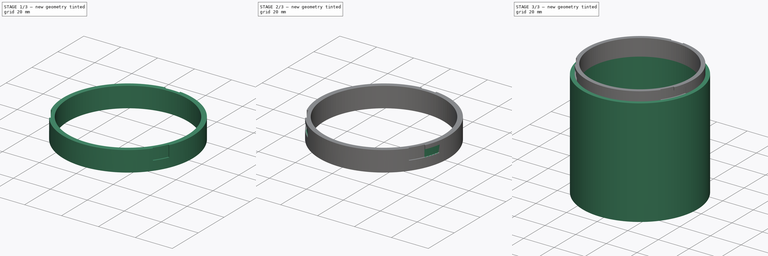
[diagram: build sequence overview — one tinted view per stage of 3, left to right]
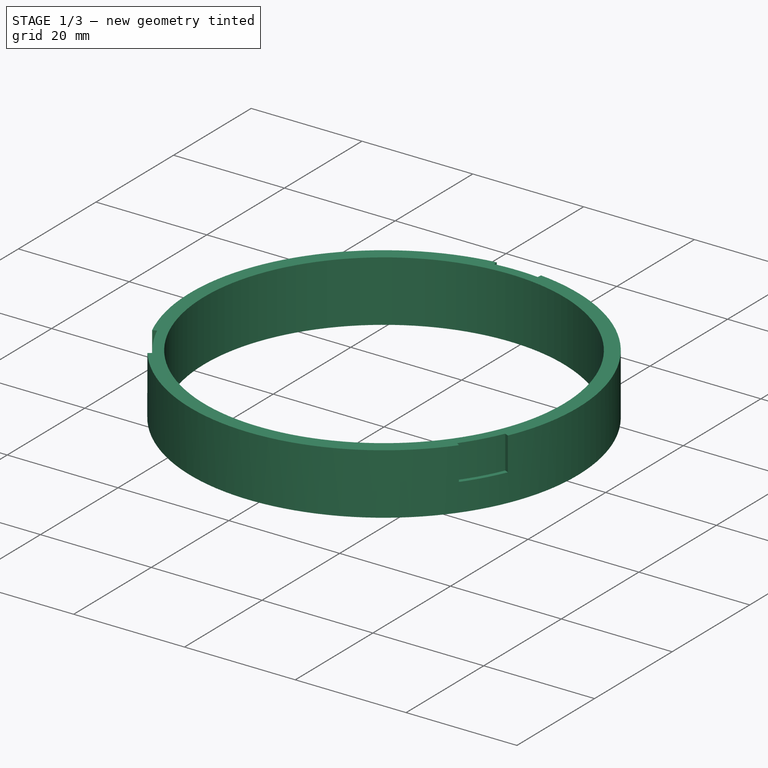
[diagram: stage 1 of 3 — iso view after this stage's code; geometry added in this stage tinted green]
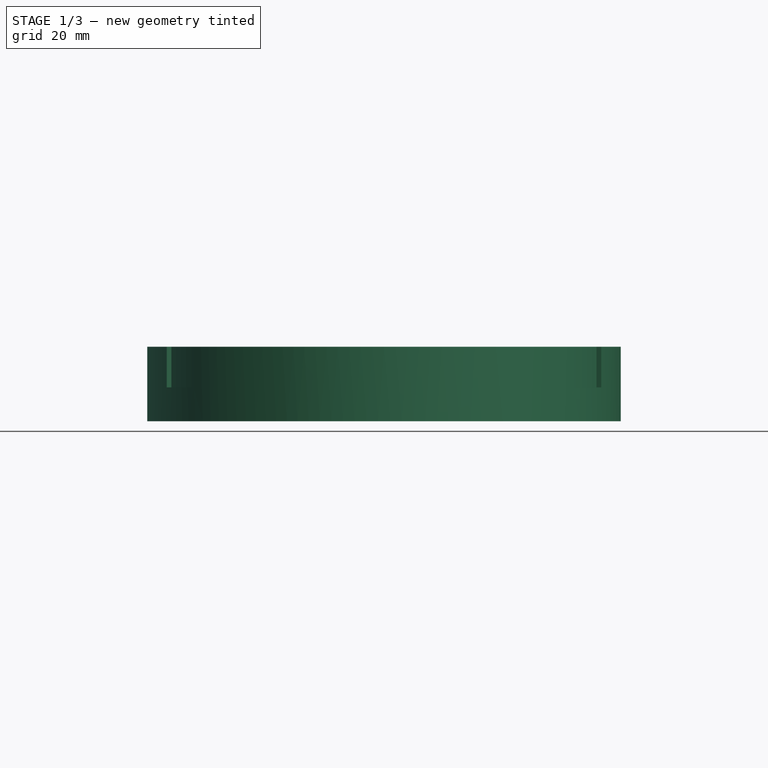
[diagram: stage 1 of 3 — front view after this stage's code; geometry added in this stage tinted green]
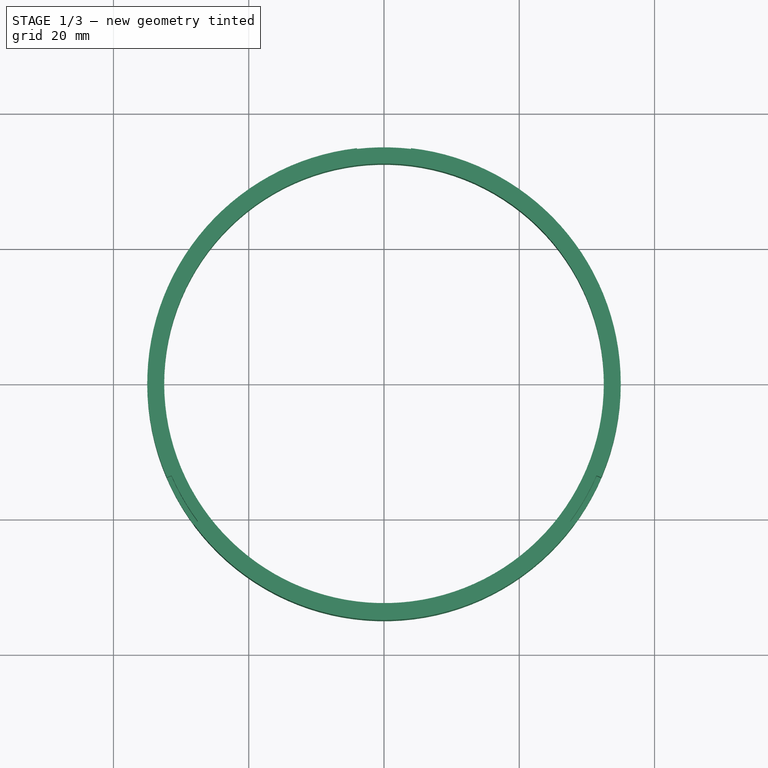
[diagram: stage 1 of 3 — top view after this stage's code; geometry added in this stage tinted green]
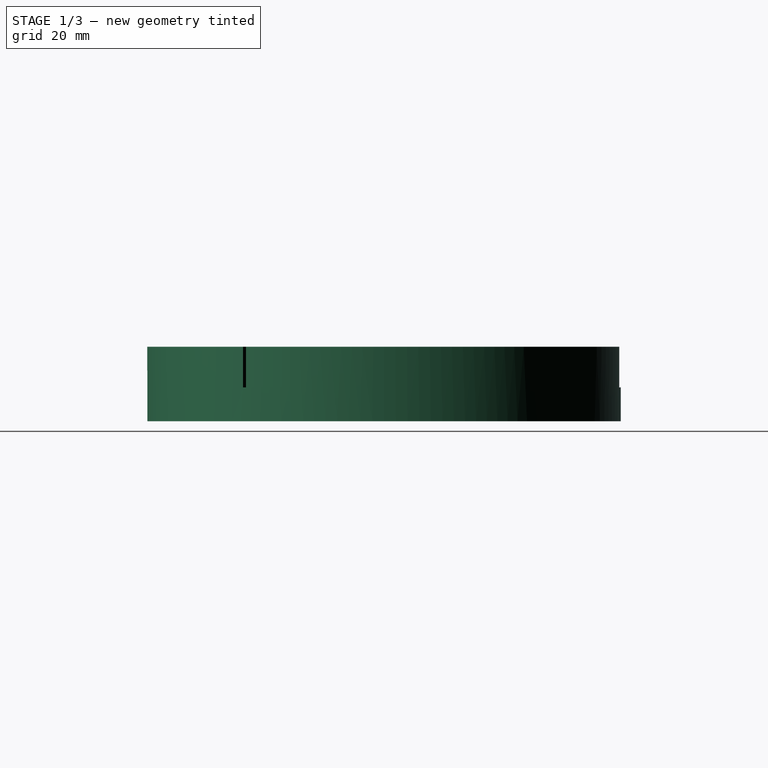
[diagram: stage 1 of 3 — right view after this stage's code; geometry added in this stage tinted green]
FCSTD DOCUMENT  (FreeCAD 0.20R)
Label: zasobnik
License: All rights reserved
LicenseURL: http://en.wikipedia.org/wiki/All_rights_reserved
objects: Sketcher::SketchObject×5, Part::Extrusion×5, Part::FeaturePython×1, Part::Cut×1, Part::MultiFuse×1
note: 13 computed .brp shape members not serialized (recipe doc carries the construction recipe); baked Part::Feature solids carry a one-line shape summary decoded from their .brp

FEATURE [Sketcher::SketchObject] Sketch001
  FullyConstrained = true
  Placement = pos=(0,0,70) rot=(0,0,1;0rad)
  sketch-geometry (2):
    g0: Circle CenterX=0 CenterY=0 CenterZ=0 NormalX=0 NormalY=0 NormalZ=1 AngleXU=0 Radius=35
    g1: Circle CenterX=0 CenterY=0 CenterZ=0 NormalX=0 NormalY=0 NormalZ=1 AngleXU=0 Radius=32.5
  constraints (4):
    c: Coincident(g0,g-1)
    c: Diameter(g0) = 70
    c: Coincident(g1,g0)
    c: Diameter(g1) = 65
FEATURE [Part::Extrusion] Extrude001  label="top_slidein"
  Base = -> Sketch001
  Dir = (0,0,-1)
  DirMode = 0
  FaceMakerClass = Part::FaceMakerBullseye
  LengthFwd = 5
  LengthRev = 6
  Solid = true
  Symmetric = false
FEATURE [Sketcher::SketchObject] Sketch003
  FullyConstrained = true
  MapMode = 5
  Placement = pos=(0,0,76) rot=(0,0,1;0rad)
  Support = -> [Extrude001]
  sketch-geometry (12):
    g0: ArcOfCircle CenterX=0 CenterY=0 CenterZ=0 NormalX=0 NormalY=0 NormalZ=1 AngleXU=0 Radius=35 StartAngle=1.45626 EndAngle=1.68533
    g1: ArcOfCircle CenterX=0 CenterY=0 CenterZ=0 NormalX=0 NormalY=0 NormalZ=1 AngleXU=0 Radius=34.25 StartAngle=1.45626 EndAngle=1.68533
    g2: LineSegment StartX=3.91429 StartY=34.0256 StartZ=0 EndX=4 EndY=34.7707 EndZ=0
    g3: LineSegment StartX=-3.91429 StartY=34.0256 StartZ=0 EndX=-4 EndY=34.7707 EndZ=0
    g4: ArcOfCircle CenterX=0 CenterY=0 CenterZ=0 NormalX=0 NormalY=0 NormalZ=1 AngleXU=0 Radius=35 StartAngle=5.64497 EndAngle=5.87404
    g5: ArcOfCircle CenterX=0 CenterY=0 CenterZ=0 NormalX=0 NormalY=0 NormalZ=1 AngleXU=0 Radius=34.25 StartAngle=5.64497 EndAngle=5.87404
    g6: LineSegment StartX=27.5082 StartY=-20.405 StartZ=0 EndX=28.1105 EndY=-20.8518 EndZ=0
    g7: LineSegment StartX=31.423 StartY=-13.6256 StartZ=0 EndX=32.1111 EndY=-13.924 EndZ=0
    g8: ArcOfCircle CenterX=0 CenterY=0 CenterZ=0 NormalX=0 NormalY=0 NormalZ=1 AngleXU=0 Radius=35 StartAngle=3.55049 EndAngle=3.77956
    g9: ArcOfCircle CenterX=0 CenterY=0 CenterZ=0 NormalX=0 NormalY=0 NormalZ=1 AngleXU=0 Radius=34.25 StartAngle=3.55049 EndAngle=3.77956
    g10: LineSegment StartX=-31.4265 StartY=-13.6176 StartZ=0 EndX=-32.1146 EndY=-13.9158 EndZ=0
    g11: LineSegment StartX=-27.5133 StartY=-20.398 StartZ=0 EndX=-28.1158 EndY=-20.8447 EndZ=0
  constraints (36):
    c: Diameter(g0) = 70
    c: Distance(g0,g0) = 8
    c: Coincident(g0,g-1)
    c: Coincident(g1,g0)
    c: Diameter(g1) = 68.5
    c: Coincident(g2,g1)
    c: Coincident(g2,g0)
    c: Coincident(g3,g0)
    c: Perpendicular(g1,g2)
    c: Coincident(g1,g3)
    c: Perpendicular(g1,g3)
    c: Distance(g0,g-2) = 4
    c: Diameter(g4) = 70
    c: Distance(g4,g4) = 8
    c: Coincident(g5,g4)
    c: Diameter(g5) = 68.5
    c: Coincident(g6,g5)
    c: Coincident(g6,g4)
    c: Coincident(g7,g4)
    c: Perpendicular(g5,g6)
    c: Coincident(g5,g7)
    c: Perpendicular(g5,g7)
    c: Coincident(g4,g0)
    c: Angle(g7,g2) = 1.86541
    c: Diameter(g8) = 70
    c: Distance(g8,g8) = 8
    c: Coincident(g9,g8)
    c: Diameter(g9) = 68.5
    c: Coincident(g10,g9)
    c: Coincident(g10,g8)
    c: Coincident(g11,g8)
    c: Coincident(g9,g11)
    c: Coincident(g8,g0)
    c: Perpendicular(g9,g11)
    c: Perpendicular(g9,g10)
    c: Angle(g11,g6) = 1.86541
FEATURE [Part::Extrusion] Extrude003
  Base = -> Sketch003
  Dir = (0,0,-1)
  DirMode = 0
  FaceMakerClass = Part::FaceMakerBullseye
  LengthFwd = 6
  LengthRev = 0
  Solid = true
  Symmetric = false
FEATURE [Part::FeaturePython] XOR  # WARN: FeaturePython — macro-defined, semantics opaque (R4)
  Objects = -> [Extrude001,Extrude003]
  Tolerance = 0
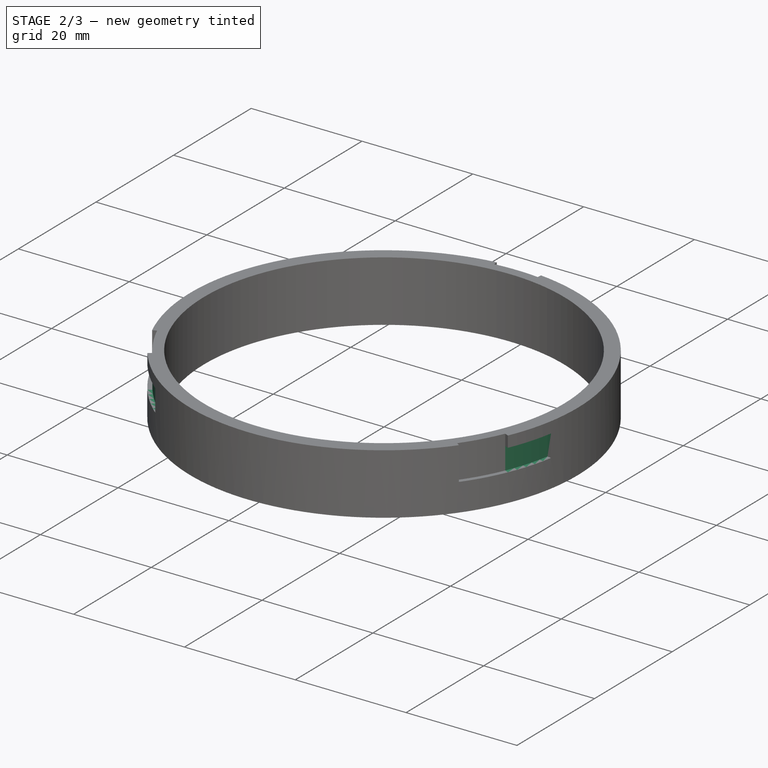
[diagram: stage 2 of 3 — iso view after this stage's code; geometry added in this stage tinted green]
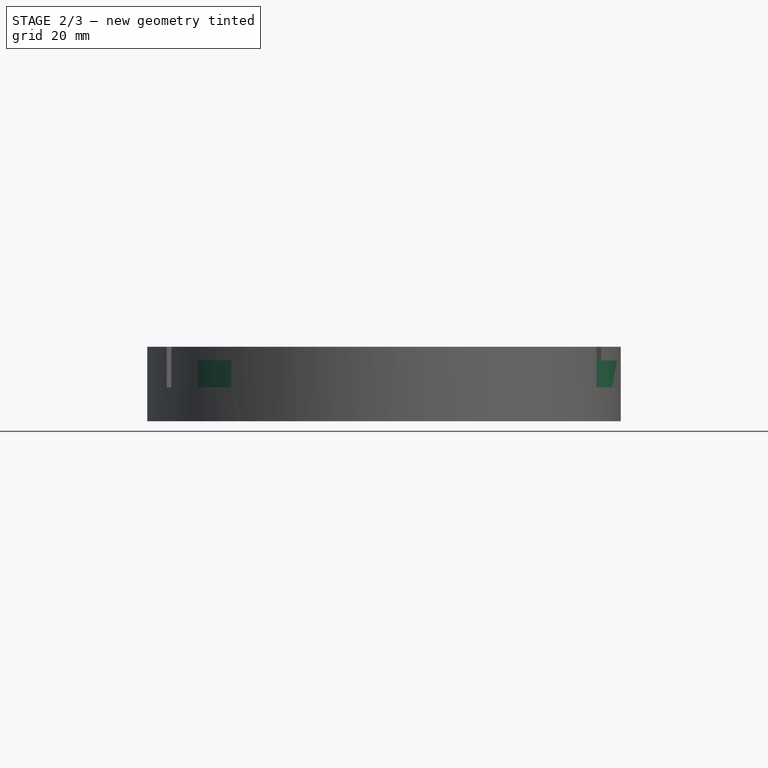
[diagram: stage 2 of 3 — front view after this stage's code; geometry added in this stage tinted green]
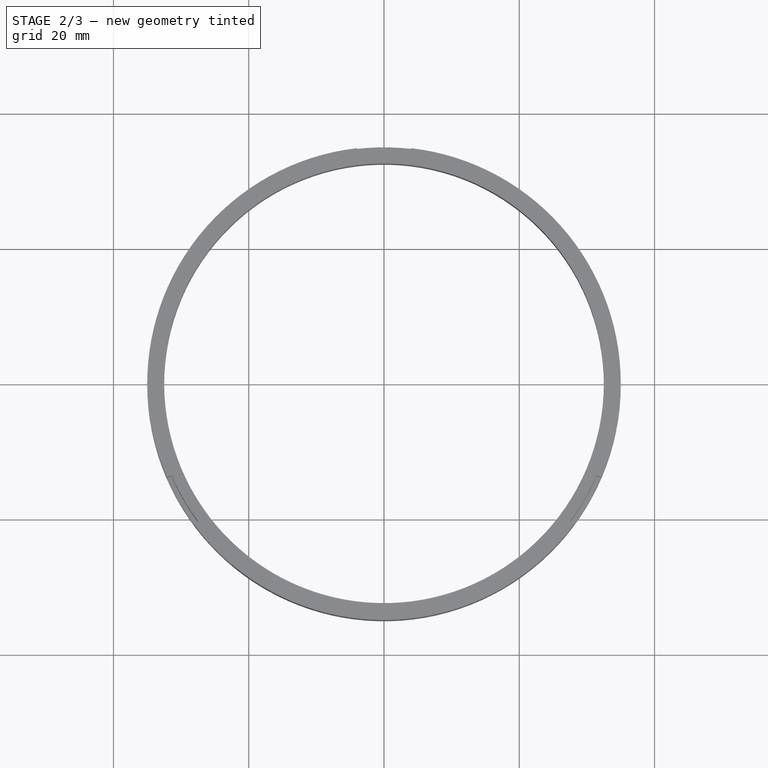
[diagram: stage 2 of 3 — top view after this stage's code; geometry added in this stage tinted green]
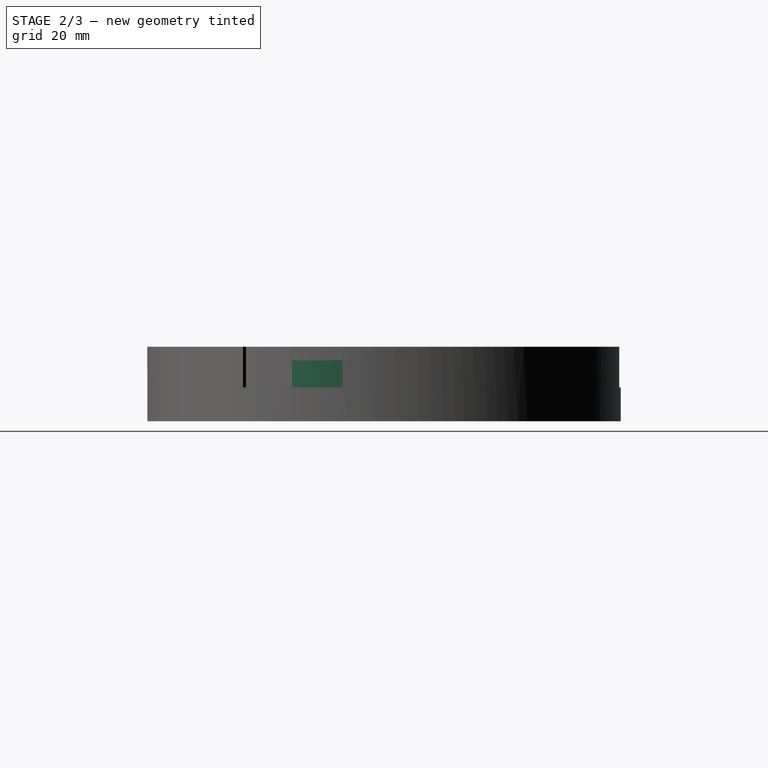
[diagram: stage 2 of 3 — right view after this stage's code; geometry added in this stage tinted green]
FEATURE [Sketcher::SketchObject] Sketch004
  AttachmentOffset = pos=(0,0,-2) rot=(0,0,1;0rad)
  FullyConstrained = true
  MapMode = 5
  Placement = pos=(0,0,74) rot=(0,0,1;0rad)
  Support = -> [XOR]
  sketch-geometry (12):
    g0: ArcOfCircle CenterX=0 CenterY=0 CenterZ=0 NormalX=0 NormalY=0 NormalZ=1 AngleXU=0 Radius=35 StartAngle=1.45626 EndAngle=1.91748
    g1: ArcOfCircle CenterX=0 CenterY=0 CenterZ=0 NormalX=0 NormalY=0 NormalZ=1 AngleXU=0 Radius=34.25 StartAngle=1.45626 EndAngle=1.91748
    g2: LineSegment StartX=-11.6375 StartY=32.2123 StartZ=0 EndX=-11.8923 EndY=32.9177 EndZ=0
    g3: LineSegment StartX=3.91429 StartY=34.0256 StartZ=0 EndX=4 EndY=34.7707 EndZ=0
    g4: ArcOfCircle CenterX=0 CenterY=0 CenterZ=0 NormalX=0 NormalY=0 NormalZ=1 AngleXU=0 Radius=35 StartAngle=5.64512 EndAngle=6.10634
    g5: ArcOfCircle CenterX=0 CenterY=0 CenterZ=0 NormalX=0 NormalY=0 NormalZ=1 AngleXU=0 Radius=34.25 StartAngle=5.64512 EndAngle=6.10634
    g6: LineSegment StartX=33.7158 StartY=-6.02539 StartZ=0 EndX=34.4541 EndY=-6.15734 EndZ=0
    g7: LineSegment StartX=27.5113 StartY=-20.4007 StartZ=0 EndX=28.1138 EndY=-20.8475 EndZ=0
    g8: ArcOfCircle CenterX=0 CenterY=0 CenterZ=0 NormalX=0 NormalY=0 NormalZ=1 AngleXU=0 Radius=35 StartAngle=3.5508 EndAngle=4.01202
    g9: ArcOfCircle CenterX=0 CenterY=0 CenterZ=0 NormalX=0 NormalY=0 NormalZ=1 AngleXU=0 Radius=34.25 StartAngle=3.5508 EndAngle=4.01202
    g10: LineSegment StartX=-22.0742 StartY=-26.1876 StartZ=0 EndX=-22.5576 EndY=-26.7611 EndZ=0
    g11: LineSegment StartX=-31.4222 StartY=-13.6274 StartZ=0 EndX=-32.1103 EndY=-13.9258 EndZ=0
  constraints (36):
    c: Coincident(g0,g-1)
    c: Diameter(g0) = 70
    c: Distance(g0,g0) = 16
    c: Coincident(g1,g0)
    c: Diameter(g1) = 68.5
    c: Coincident(g2,g1)
    c: Coincident(g2,g0)
    c: Coincident(g3,g1)
    c: Coincident(g3,g0)
    c: Perpendicular(g1,g3)
    c: Perpendicular(g1,g2)
    c: Distance(g0,g-2) = 4
    c: Diameter(g4) = 70
    c: Distance(g4,g4) = 16
    c: Coincident(g5,g4)
    c: Diameter(g5) = 68.5
    c: Coincident(g6,g5)
    c: Coincident(g6,g4)
    c: Coincident(g7,g5)
    c: Coincident(g7,g4)
    c: Perpendicular(g5,g7)
    c: Perpendicular(g5,g6)
    c: Coincident(g4,g0)
    c: Angle(g6,g3) = 1.6331
    c: Diameter(g8) = 70
    c: Distance(g8,g8) = 16
    c: Coincident(g9,g8)
    c: Diameter(g9) = 68.5
    c: Coincident(g10,g9)
    c: Coincident(g10,g8)
    c: Coincident(g11,g9)
    c: Coincident(g11,g8)
    c: Perpendicular(g9,g11)
    c: Perpendicular(g9,g10)
    c: Coincident(g8,g0)
    c: Angle(g10,g7) = 1.6331
FEATURE [Part::Extrusion] Extrude004
  Base = -> Sketch004
  Dir = (0,0,-1)
  DirMode = 0
  FaceMakerClass = Part::FaceMakerBullseye
  LengthFwd = 4
  LengthRev = 0
  Solid = true
  Symmetric = false
FEATURE [Part::Cut] Cut
  Base = -> XOR
  Tool = -> Extrude004
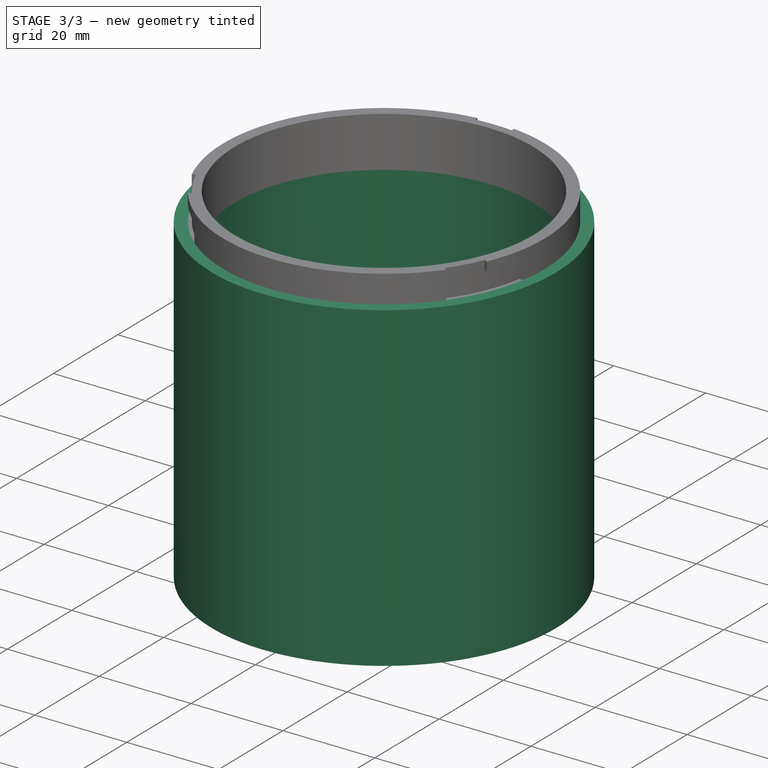
[diagram: stage 3 of 3 — iso view after this stage's code; geometry added in this stage tinted green]
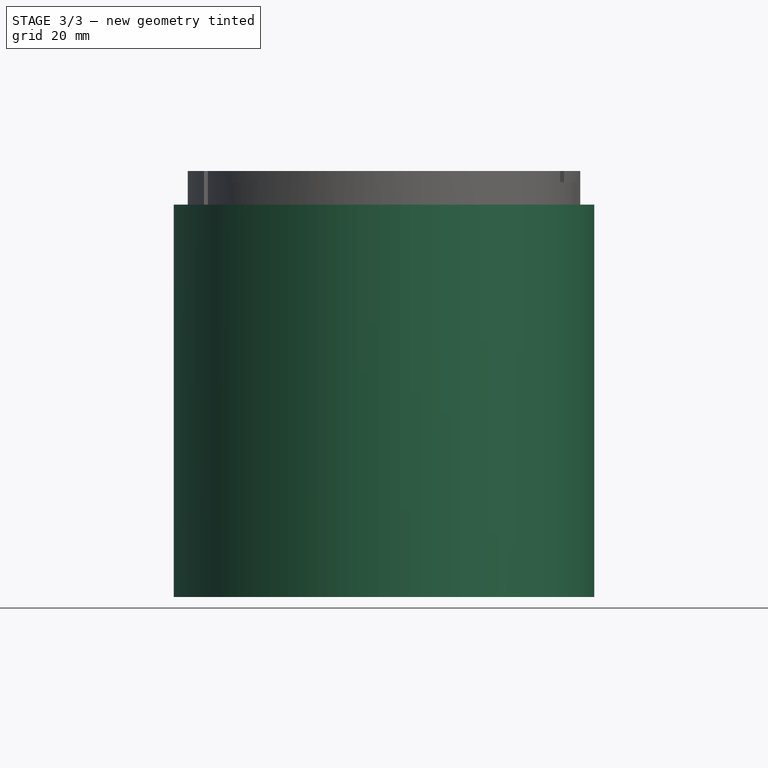
[diagram: stage 3 of 3 — front view after this stage's code; geometry added in this stage tinted green]
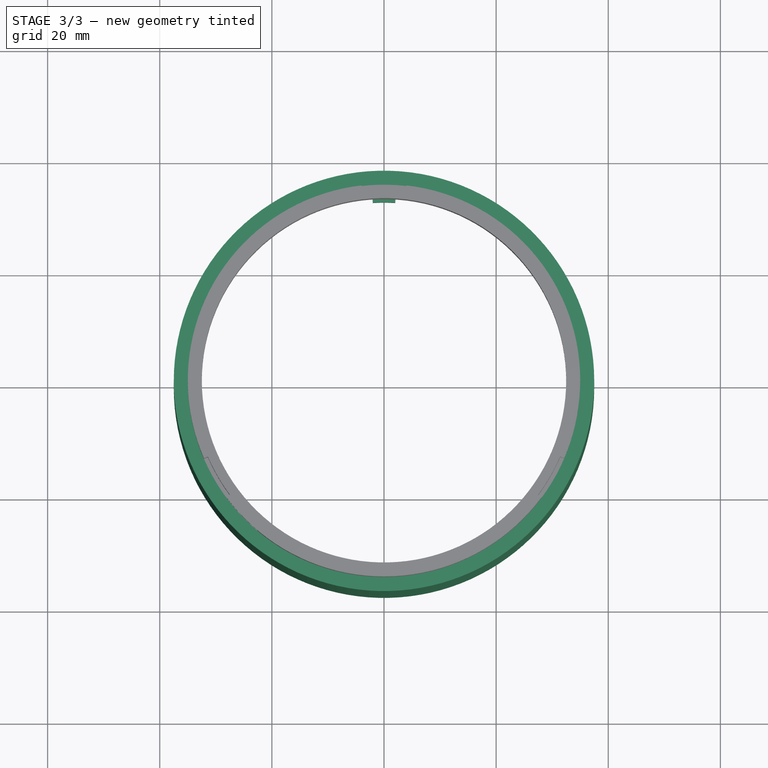
[diagram: stage 3 of 3 — top view after this stage's code; geometry added in this stage tinted green]
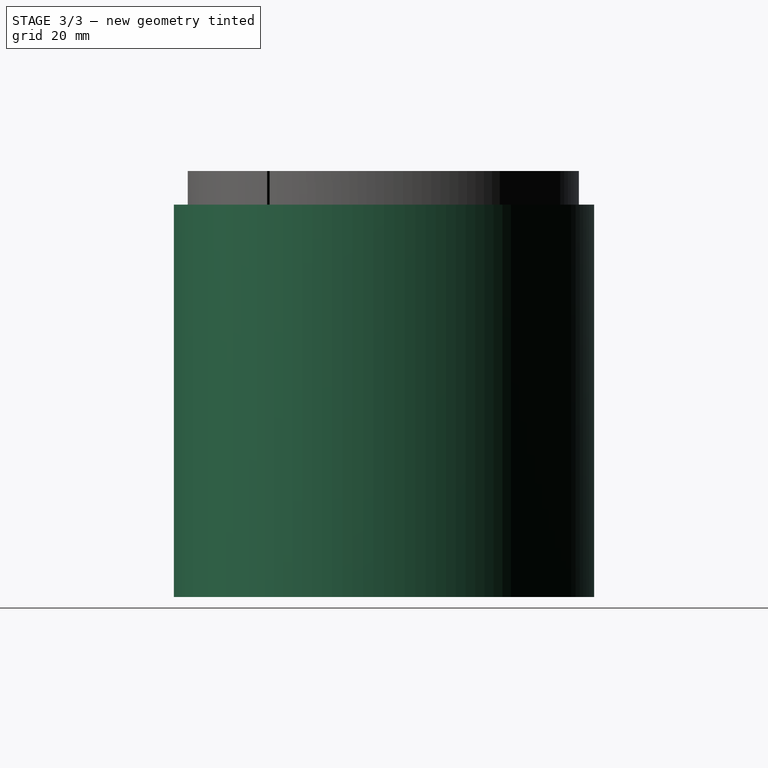
[diagram: stage 3 of 3 — right view after this stage's code; geometry added in this stage tinted green]
FEATURE [Sketcher::SketchObject] Sketch
  FullyConstrained = true
  sketch-geometry (2):
    g0: Circle CenterX=0 CenterY=0 CenterZ=0 NormalX=0 NormalY=0 NormalZ=1 AngleXU=0 Radius=35
    g1: Circle CenterX=0 CenterY=0 CenterZ=0 NormalX=0 NormalY=0 NormalZ=1 AngleXU=0 Radius=37.5
  constraints (4):
    c: Coincident(g0,g-1)
    c: Diameter(g0) = 70
    c: Coincident(g1,g0)
    c: Diameter(g1) = 75
FEATURE [Part::Extrusion] Extrude  label="main"
  Base = -> Sketch
  Dir = (0,0,1)
  DirMode = 0
  FaceMakerClass = Part::FaceMakerBullseye
  LengthFwd = 70
  LengthRev = 0
  Solid = true
  Symmetric = false
FEATURE [Sketcher::SketchObject] Sketch002
  FullyConstrained = true
  sketch-geometry (12):
    g0: ArcOfCircle CenterX=0 CenterY=0 CenterZ=0 NormalX=0 NormalY=0 NormalZ=1 AngleXU=0 Radius=33 StartAngle=1.51015 EndAngle=1.63144
    g1: LineSegment StartX=2 StartY=32.9393 StartZ=0 EndX=2.12121 EndY=34.9357 EndZ=0
    g2: LineSegment StartX=-2 StartY=32.9393 StartZ=0 EndX=-2.12121 EndY=34.9357 EndZ=0
    g3: ArcOfCircle CenterX=0 CenterY=0 CenterZ=0 NormalX=0 NormalY=0 NormalZ=1 AngleXU=0 Radius=33 StartAngle=5.69896 EndAngle=5.82024
    g4: LineSegment StartX=27.5266 StartY=-18.2013 StartZ=0 EndX=29.1948 EndY=-19.3044 EndZ=0
    g5: LineSegment StartX=29.5265 StartY=-14.7372 StartZ=0 EndX=31.316 EndY=-15.6304 EndZ=0
    g6: ArcOfCircle CenterX=0 CenterY=0 CenterZ=0 NormalX=0 NormalY=0 NormalZ=1 AngleXU=0 Radius=33 StartAngle=3.60458 EndAngle=3.72586
    g7: LineSegment StartX=-29.5259 StartY=-14.7384 StartZ=0 EndX=-31.3153 EndY=-15.6317 EndZ=0
    g8: LineSegment StartX=-27.5258 StartY=-18.2025 StartZ=0 EndX=-29.194 EndY=-19.3057 EndZ=0
    g9: ArcOfCircle CenterX=0 CenterY=0 CenterZ=0 NormalX=0 NormalY=0 NormalZ=1 AngleXU=0 Radius=35 StartAngle=1.51015 EndAngle=1.63144
    g10: ArcOfCircle CenterX=0 CenterY=0 CenterZ=0 NormalX=0 NormalY=0 NormalZ=1 AngleXU=0 Radius=35 StartAngle=5.69896 EndAngle=5.82024
    g11: ArcOfCircle CenterX=0 CenterY=0 CenterZ=0 NormalX=0 NormalY=0 NormalZ=1 AngleXU=0 Radius=35 StartAngle=3.60458 EndAngle=3.72586
  constraints (36):
    c: Diameter(g0) = 66
    c: Distance(g0,g0) = 4
    c: Coincident(g1,g0)
    c: Coincident(g2,g0)
    c: Perpendicular(g0,g1)
    c: Perpendicular(g0,g2)
    c: Distance(g0,g-2) = 2
    c: Diameter(g3) = 66
    c: Distance(g3,g3) = 4
    c: Coincident(g4,g3)
    c: Coincident(g5,g3)
    c: Perpendicular(g3,g4)
    c: Perpendicular(g3,g5)
    c: Angle(g5,g1) = 1.97309
    c: Diameter(g6) = 66
    c: Distance(g6,g6) = 4
    c: Coincident(g7,g6)
    c: Coincident(g8,g6)
    c: Perpendicular(g6,g7)
    c: Perpendicular(g6,g8)
    c: Angle(g8,g4) = 1.97309
    c: Coincident(g9,g0)
    c: Coincident(g9,g2)
    c: Coincident(g9,g1)
    c: Coincident(g10,g0)
    c: Coincident(g10,g5)
    c: Coincident(g10,g4)
    c: Coincident(g11,g0)
    c: Coincident(g11,g8)
    c: Coincident(g11,g7)
    c: Diameter(g10) = 70
    c: Diameter(g9) = 70
    c: Diameter(g11) = 70
    c: Coincident(g0,g-1)
    c: Coincident(g6,g0)
    c: Coincident(g3,g0)
FEATURE [Part::Extrusion] Extrude002  label="bottom_locks"
  Base = -> Sketch002
  Dir = (0,0,1)
  DirMode = 0
  FaceMakerClass = Part::FaceMakerBullseye
  LengthFwd = 4
  LengthRev = 0
  Solid = true
  Symmetric = false
FEATURE [Part::MultiFuse] Fusion
  Shapes = -> [Extrude,Extrude002,Cut]
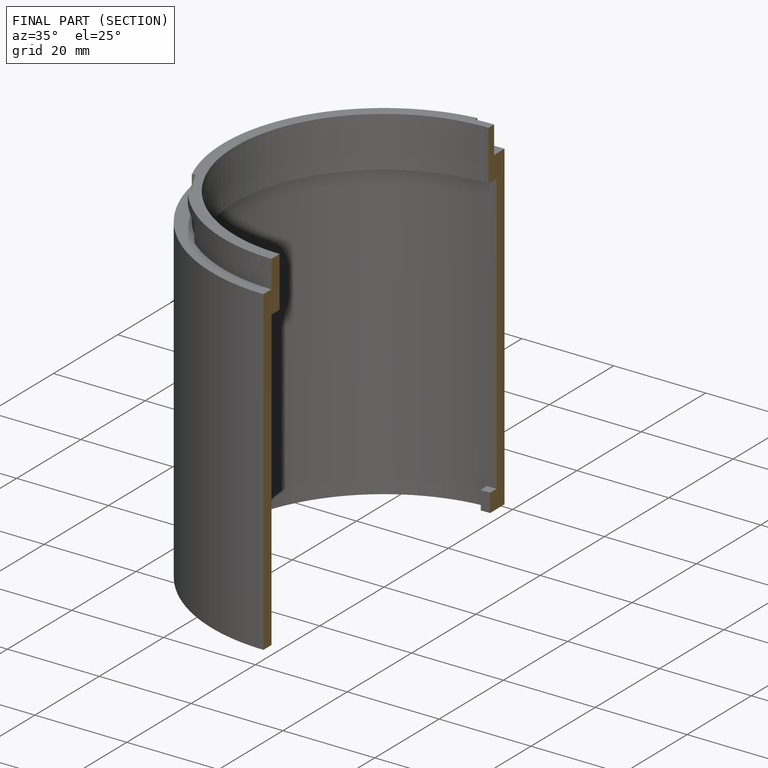
[diagram: finished part — half-section view (interior)]
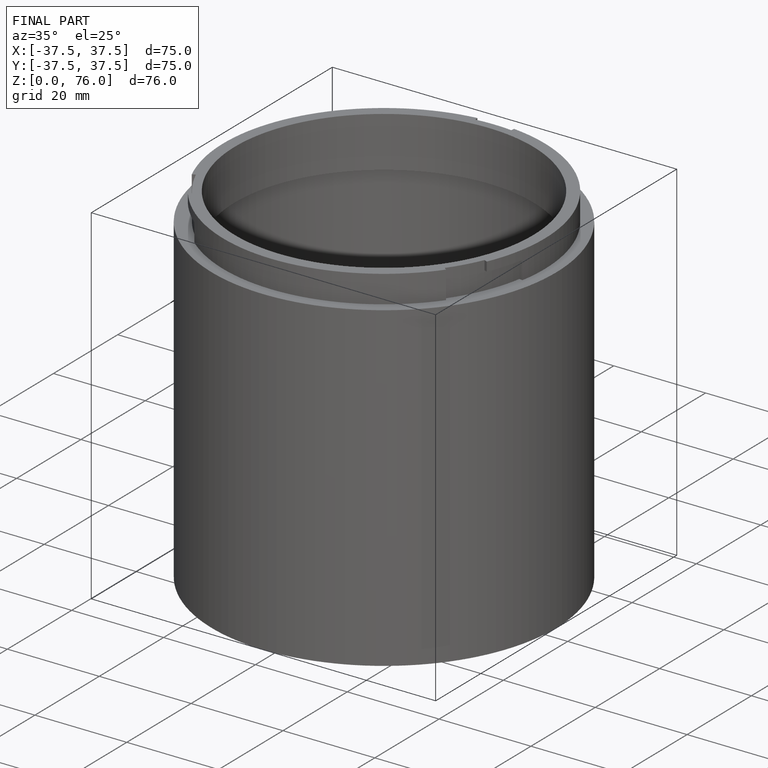
[diagram: finished part — iso view with bounding-box wireframe]
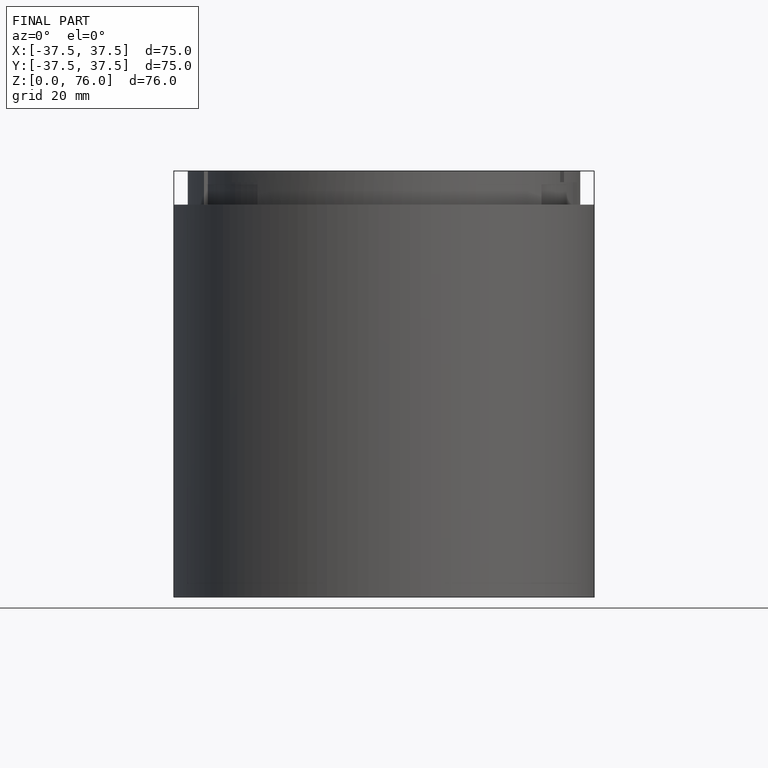
[diagram: finished part — front view with bounding-box wireframe]
